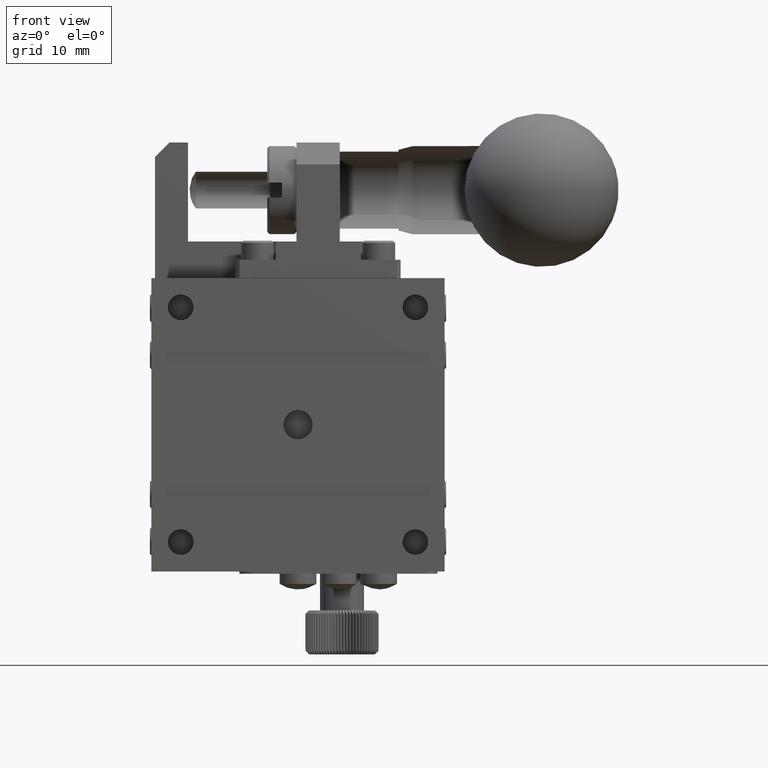
[diagram: clean part render]
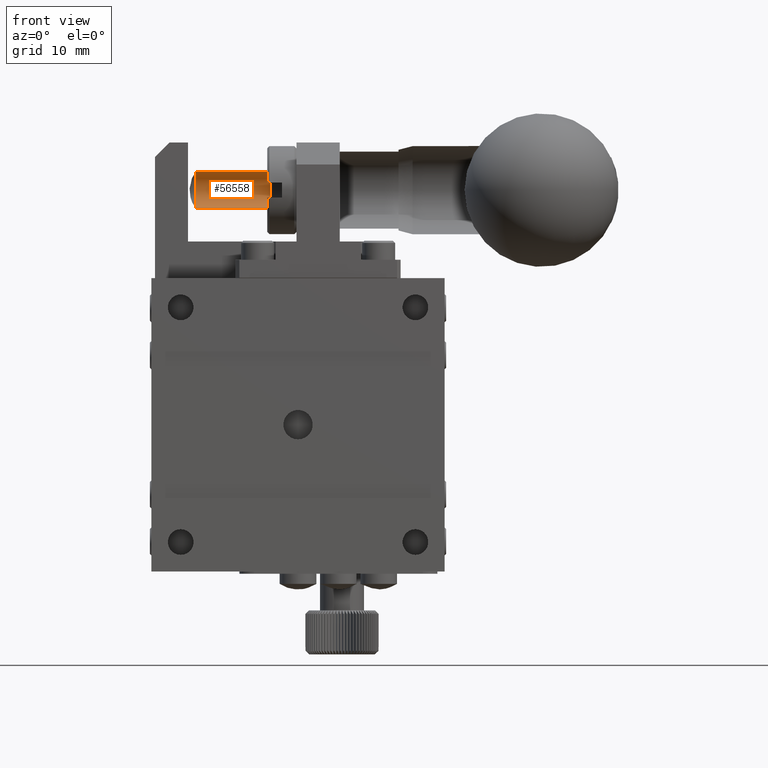
[diagram: same view with one face highlighted and labeled with its STEP entity id]
A machine part, front view. The second image highlights one B-rep face of the part: STEP entity #56558.
In plain terms, the highlighted cylindrical surface (bore or boss wall) has radius 2.5 mm, axis along (-1, -0, 0).
Its self-contained STEP definition (entity closure, byte-faithful):
#6352 = DIRECTION ( 'NONE',  ( -1.000000000000000000, -0.000000000000000000, 0.000000000000000000 ) ) ;
#7812 = AXIS2_PLACEMENT_3D ( 'NONE', #38246, #46499, #88811 ) ;
#8641 = FACE_OUTER_BOUND ( 'NONE', #25393, .T. ) ;
#13022 = DIRECTION ( 'NONE',  ( 0.000000000000000000, 0.000000000000000000, 1.000000000000000000 ) ) ;
#15349 = EDGE_CURVE ( 'NONE', #78963, #78963, #78682, .T. ) ;
#23108 = CIRCLE ( 'NONE', #92898, 2.500000000000002220 ) ;
#25393 = EDGE_LOOP ( 'NONE', ( #28397 ) ) ;
#27860 = ORIENTED_EDGE ( 'NONE', *, *, #15349, .T. ) ;
#28397 = ORIENTED_EDGE ( 'NONE', *, *, #59800, .T. ) ;
#28688 = DIRECTION ( 'NONE',  ( 0.000000000000000000, 0.000000000000000000, 1.000000000000000000 ) ) ;
#31541 = EDGE_LOOP ( 'NONE', ( #27860 ) ) ;
#38246 = CARTESIAN_POINT ( 'NONE',  ( 64.80959005914812110, 8.900000000000000355, 32.00000000000000000 ) ) ;
#46499 = DIRECTION ( 'NONE',  ( -1.000000000000000000, -0.000000000000000000, 0.000000000000000000 ) ) ;
#53622 = VERTEX_POINT ( 'NONE', #90053 ) ;
#56558 = ADVANCED_FACE ( 'NONE', ( #82458, #8641 ), #81530, .T. ) ;
#58502 = AXIS2_PLACEMENT_3D ( 'NONE', #77865, #85596, #13022 ) ;
#59800 = EDGE_CURVE ( 'NONE', #53622, #53622, #23108, .T. ) ;
#70753 = CARTESIAN_POINT ( 'NONE',  ( 7.187091059948920169, 8.900000000000000355, 34.50000000000000000 ) ) ;
#72942 = CARTESIAN_POINT ( 'NONE',  ( 17.30959005914811755, 8.900000000000000355, 32.00000000000000000 ) ) ;
#77865 = CARTESIAN_POINT ( 'NONE',  ( 7.187091059948920169, 8.900000000000000355, 32.00000000000000000 ) ) ;
#78682 = CIRCLE ( 'NONE', #58502, 2.500000000000002220 ) ;
#78963 = VERTEX_POINT ( 'NONE', #70753 ) ;
#81530 = CYLINDRICAL_SURFACE ( 'NONE', #7812, 2.500000000000002220 ) ;
#82458 = FACE_OUTER_BOUND ( 'NONE', #31541, .T. ) ;
#85596 = DIRECTION ( 'NONE',  ( 1.000000000000000000, 0.000000000000000000, -0.000000000000000000 ) ) ;
#88811 = DIRECTION ( 'NONE',  ( 0.000000000000000000, 0.000000000000000000, 1.000000000000000000 ) ) ;
#90053 = CARTESIAN_POINT ( 'NONE',  ( 17.30959005914811755, 8.900000000000000355, 34.50000000000000000 ) ) ;
#92898 = AXIS2_PLACEMENT_3D ( 'NONE', #72942, #6352, #28688 ) ;